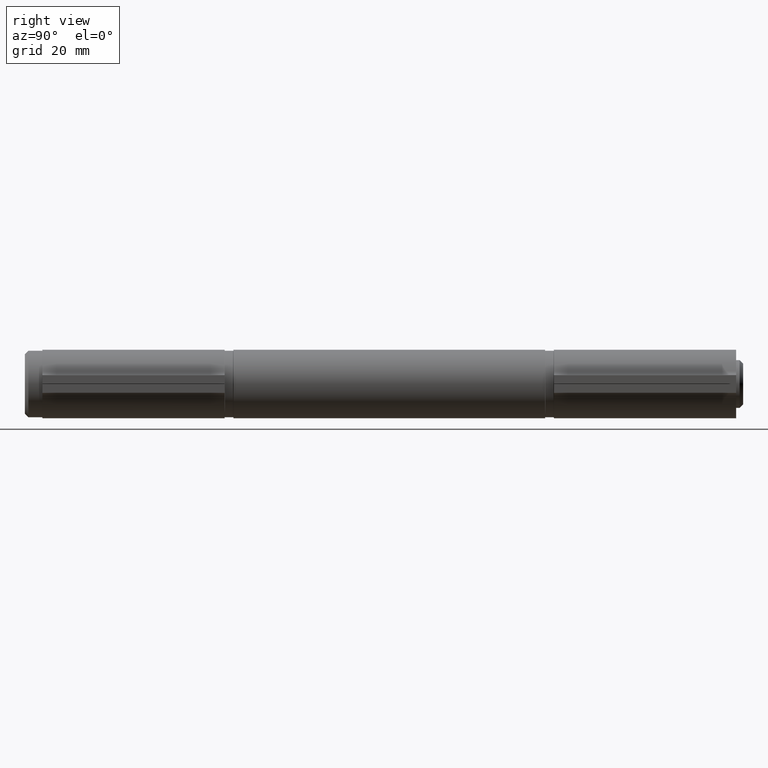
[diagram: clean part render]
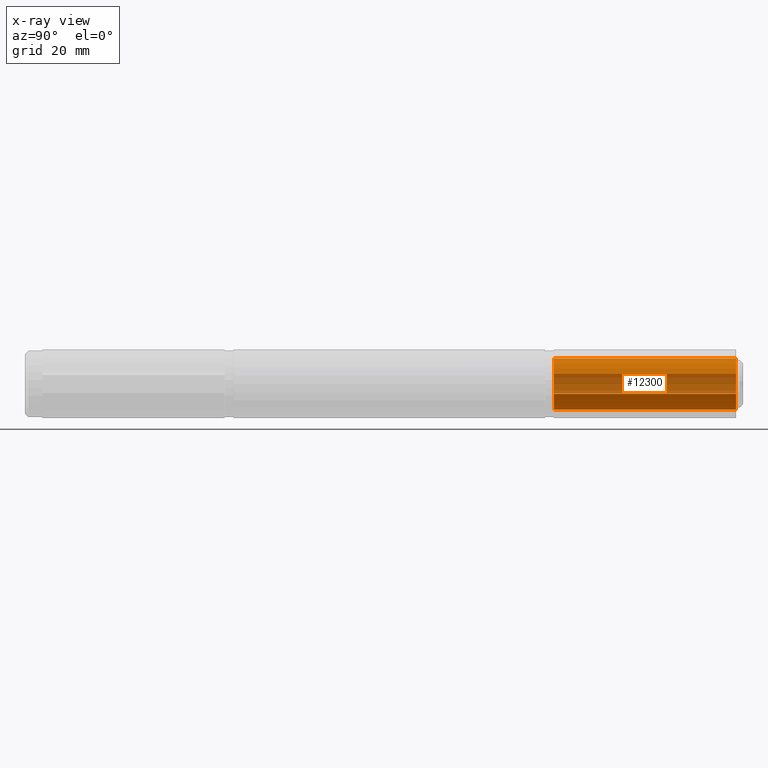
[diagram: x-ray — body ghosted, one internal face saturated and labeled with its STEP entity id]
A machine part, right view, then the same camera in x-ray: the body is ghosted and one INTERNAL B-rep face — a face not visible from any outside direction — is saturated and labeled: STEP entity #12300.
In plain terms, the highlighted cylindrical surface (edge-blend (fillet) strip) has radius 7.3 mm, axis along (0, -1, 0).
Its self-contained STEP definition (entity closure, byte-faithful):
#160 = CARTESIAN_POINT ( 'NONE',  ( 0.000000000000000000, 25.99999999999999645, 0.000000000000000000 ) ) ;
#490 = CARTESIAN_POINT ( 'NONE',  ( -2.814830508474595483, -25.99999999999999645, -6.735482848954621460 ) ) ;
#525 = CARTESIAN_POINT ( 'NONE',  ( 2.814830508474598592, 25.99999999999999645, -6.735482848954619683 ) ) ;
#1186 = DIRECTION ( 'NONE',  ( 0.000000000000000000, -1.000000000000000000, 0.000000000000000000 ) ) ;
#1631 = ORIENTED_EDGE ( 'NONE', *, *, #4043, .F. ) ;
#1645 = FACE_OUTER_BOUND ( 'NONE', #2352, .T. ) ;
#1936 = LINE ( 'NONE', #10950, #11347 ) ;
#1943 = CARTESIAN_POINT ( 'NONE',  ( 2.814830508474598592, 25.99999999999999645, -6.735482848954619683 ) ) ;
#2026 = CARTESIAN_POINT ( 'NONE',  ( 0.000000000000000000, 25.99999999999999645, 0.000000000000000000 ) ) ;
#2169 = EDGE_CURVE ( 'NONE', #8721, #5724, #11827, .T. ) ;
#2352 = EDGE_LOOP ( 'NONE', ( #6384, #1631, #6353, #8952 ) ) ;
#3086 = DIRECTION ( 'NONE',  ( 0.000000000000000000, 0.000000000000000000, -1.000000000000000000 ) ) ;
#3207 = DIRECTION ( 'NONE',  ( 0.000000000000000000, -1.000000000000000000, 0.000000000000000000 ) ) ;
#4043 = EDGE_CURVE ( 'NONE', #5341, #4662, #1936, .T. ) ;
#4137 = EDGE_CURVE ( 'NONE', #8721, #5341, #10916, .T. ) ;
#4662 = VERTEX_POINT ( 'NONE', #490 ) ;
#5341 = VERTEX_POINT ( 'NONE', #6083 ) ;
#5724 = VERTEX_POINT ( 'NONE', #7706 ) ;
#5870 = CYLINDRICAL_SURFACE ( 'NONE', #8724, 7.300000000000076206 ) ;
#5940 = DIRECTION ( 'NONE',  ( 0.000000000000000000, 0.000000000000000000, 1.000000000000000000 ) ) ;
#6083 = CARTESIAN_POINT ( 'NONE',  ( -2.814830508474595483, 25.99999999999999645, -6.735482848954621460 ) ) ;
#6353 = ORIENTED_EDGE ( 'NONE', *, *, #4137, .F. ) ;
#6384 = ORIENTED_EDGE ( 'NONE', *, *, #8030, .T. ) ;
#6553 = CARTESIAN_POINT ( 'NONE',  ( 0.000000000000000000, -25.99999999999999645, 0.000000000000000000 ) ) ;
#6942 = DIRECTION ( 'NONE',  ( 0.000000000000000000, -1.000000000000000000, 0.000000000000000000 ) ) ;
#7486 = DIRECTION ( 'NONE',  ( 0.000000000000000000, -1.000000000000000000, 0.000000000000000000 ) ) ;
#7706 = CARTESIAN_POINT ( 'NONE',  ( 2.814830508474598592, -25.99999999999999645, -6.735482848954619683 ) ) ;
#8030 = EDGE_CURVE ( 'NONE', #5724, #4662, #9182, .T. ) ;
#8636 = VECTOR ( 'NONE', #9856, 1000.000000000000000 ) ;
#8721 = VERTEX_POINT ( 'NONE', #525 ) ;
#8722 = AXIS2_PLACEMENT_3D ( 'NONE', #160, #1186, #5940 ) ;
#8724 = AXIS2_PLACEMENT_3D ( 'NONE', #2026, #6942, #3086 ) ;
#8879 = AXIS2_PLACEMENT_3D ( 'NONE', #6553, #7486, #10482 ) ;
#8952 = ORIENTED_EDGE ( 'NONE', *, *, #2169, .T. ) ;
#9182 = CIRCLE ( 'NONE', #8879, 7.300000000000076206 ) ;
#9856 = DIRECTION ( 'NONE',  ( 0.000000000000000000, -1.000000000000000000, 0.000000000000000000 ) ) ;
#10482 = DIRECTION ( 'NONE',  ( 0.000000000000000000, 0.000000000000000000, 1.000000000000000000 ) ) ;
#10916 = CIRCLE ( 'NONE', #8722, 7.300000000000076206 ) ;
#10950 = CARTESIAN_POINT ( 'NONE',  ( -2.814830508474595483, 25.99999999999999645, -6.735482848954621460 ) ) ;
#11347 = VECTOR ( 'NONE', #3207, 1000.000000000000000 ) ;
#11827 = LINE ( 'NONE', #1943, #8636 ) ;
#12300 = ADVANCED_FACE ( 'NONE', ( #1645 ), #5870, .F. ) ;